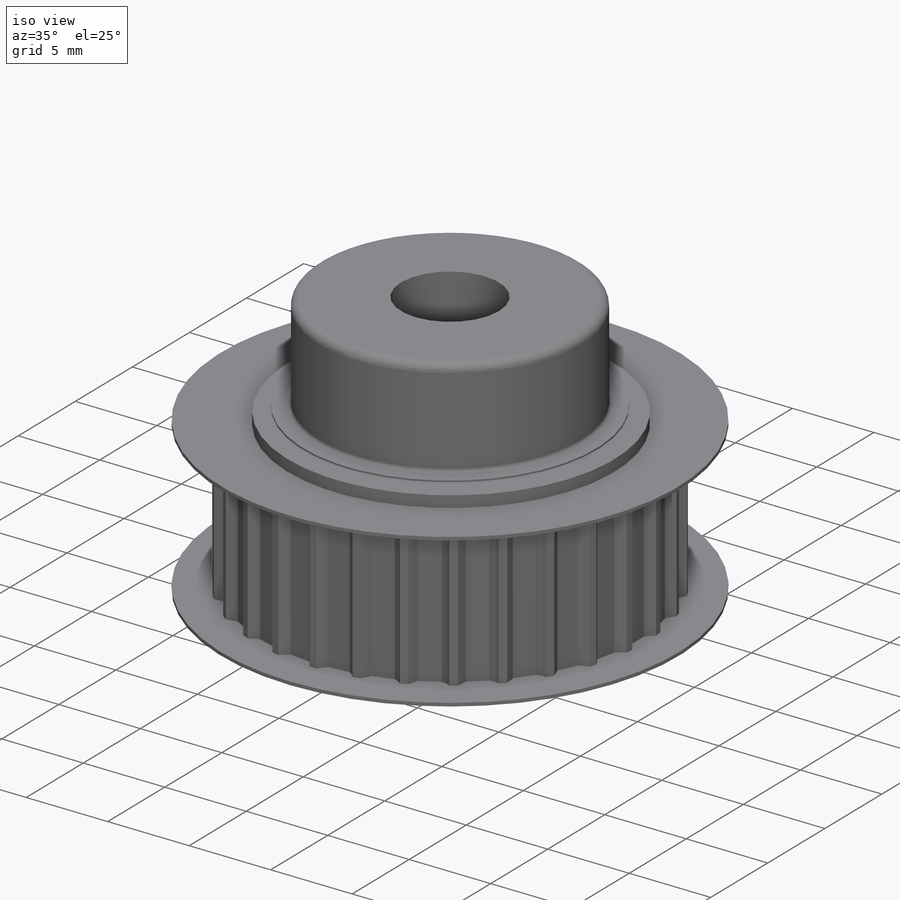
[diagram: iso view]
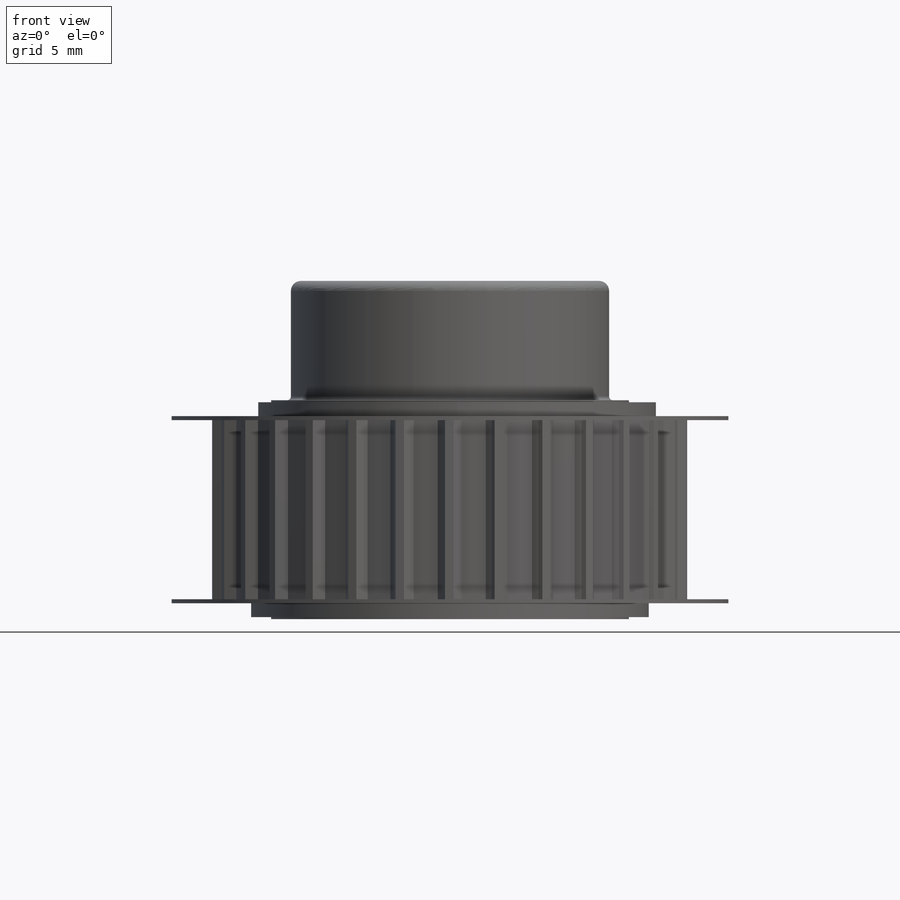
[diagram: front view]
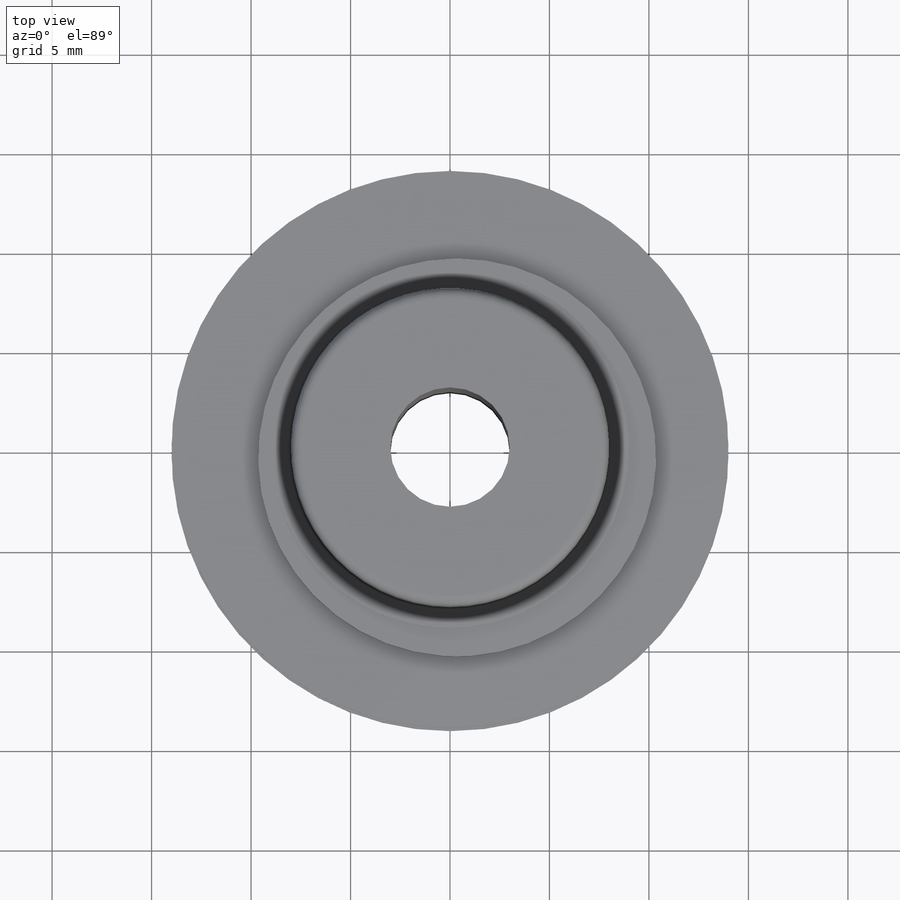
[diagram: top view]
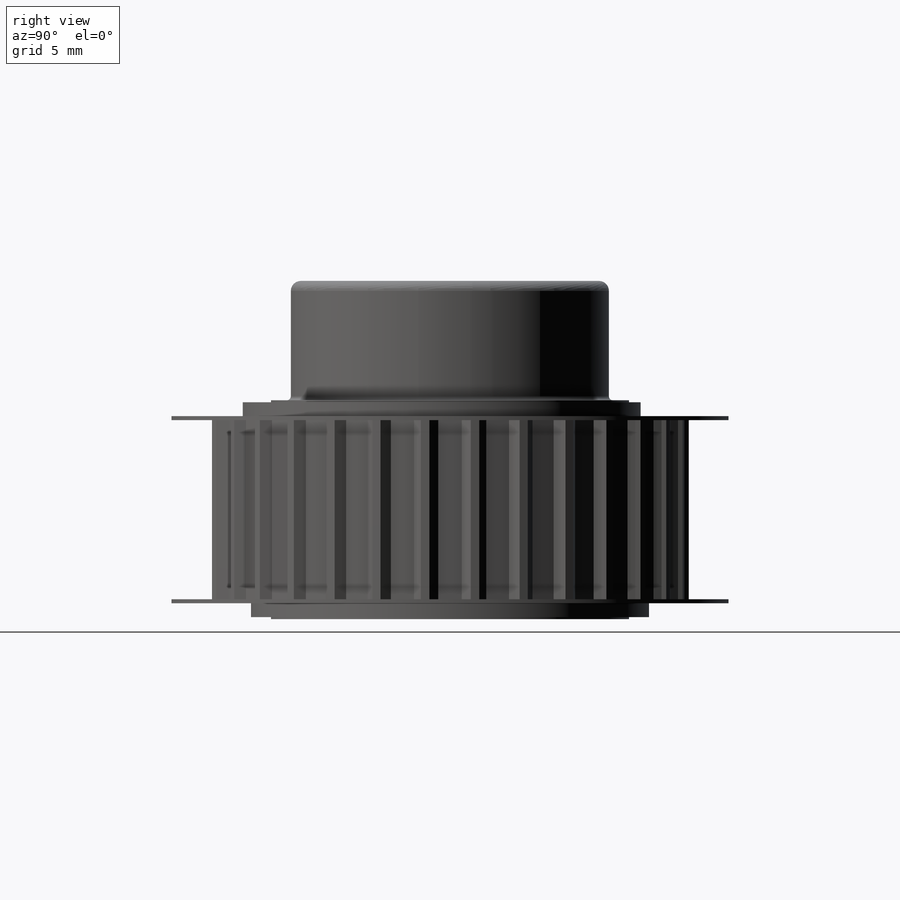
[diagram: right view]
SOLIDWORKS PART (.sldprt)
format: sldprt  version: not decoded by parser v0  size: 648,192 bytes
history: native  units: mm
features: sketch x10, extrude x9, plane x3, fillet x2, material x1, cut_extrude x1 (+9 scaffold rows collapsed)
feature tree (35):
  scaffold x9  (default folders/planes/origin — collapsed)
  material  "Matériau <non spécifié>"
  plane  "Plan de face"
  plane  "Plan de dessus"
  plane  "Plan de droite"
  sketch  "Esquisse1"  dims[D1=23.0mm]
  extrude  "Boss.-Extru.1"  Depth=9mm
  sketch  "Esquisse2"  dims[c1.D4=23.0mm c1.D1=0.5mm c1.D2=12.0mm c1.D3=1.0mm c2.D3=120.0deg c2.D4=1.0mm c3.D4=120.0deg c3.D5=12.0mm c3.D6=17.5mm c3.D7=0.4mm c3.D8=0.4mm c3.D9=~2.003798mm c4.D6=12.0mm c4.D9=0.5mm c5.D9=0.0deg c5.D6=0.0mm c5.D11=~0.416454mm c5.D3=0.4mm c5.D4=0.5mm c6.D4=130.0deg c6.D6=0.5mm c7.D6=130.0deg c7.D3=0.5mm c7.D1=~0.431689mm c8.D3=0.0mm c8.D7=~0.431689mm c8.D8=~0.433335mm c8.D9=~0.434976mm c8.D10=30.0]
  extrude  "Boss.-Extru.3"  Depth=9mm
  sketch  "Esquisse3"  dims[D1=28.0mm]
  extrude  "Boss.-Extru.4"  Depth=0.2mm
  sketch  "Esquisse4"  dims[D1=20.0mm]
  extrude  "Boss.-Extru.5"  Depth=0.7mm
  sketch  "Esquisse5"  dims[D1=18.0mm]
  extrude  "Boss.-Extru.6"  Depth=0.1mm
  sketch  "Esquisse6"  dims[D1=28.0mm]
  extrude  "Boss.-Extru.7"  Depth=0.2mm
  sketch  "Esquisse7"  dims[D1=20.0mm]
  extrude  "Boss.-Extru.8"  Depth=0.7mm
  sketch  "Esquisse8"  dims[D1=18.0mm]
  extrude  "Boss.-Extru.9"  Depth=0.1mm
  sketch  "Esquisse9"  dims[D1=16.0mm]
  extrude  "Boss.-Extru.10"  Depth=6mm
  fillet  "Congé1"  Radius=0.5mm
  fillet  "Congé2"  Radius=0.2mm
  sketch  "Esquisse10"  dims[D1=6.0mm]
  cut_extrude  "Enlèv. mat.-Extru.1"  [1 undecoded]
decode coverage: 21 of 22 modeling features carry decoded parameters
note: ~ marks probable driven/reference dimensions
note: 1 parameter value undecoded
note: suppression state not decoded; provenance and decode notes live in map.json
